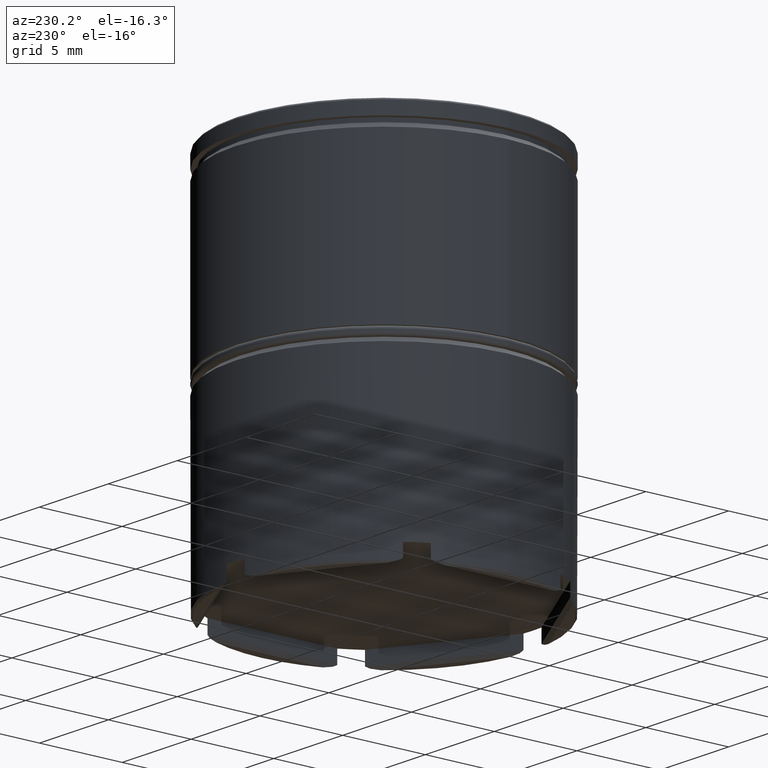
[diagram: clean part render]
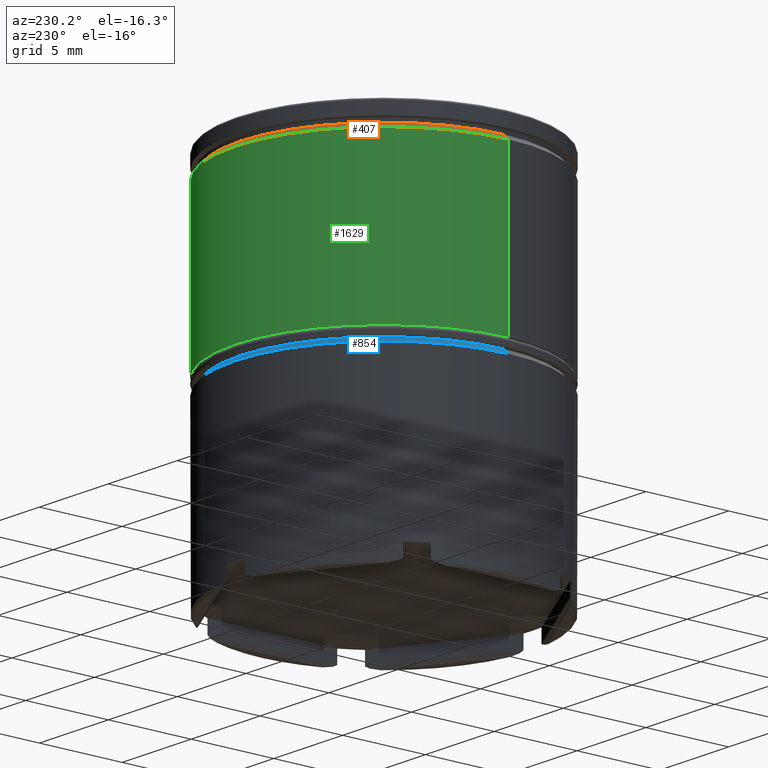
[diagram: same view with three faces highlighted in distinct colors, each labeled with its STEP entity id]
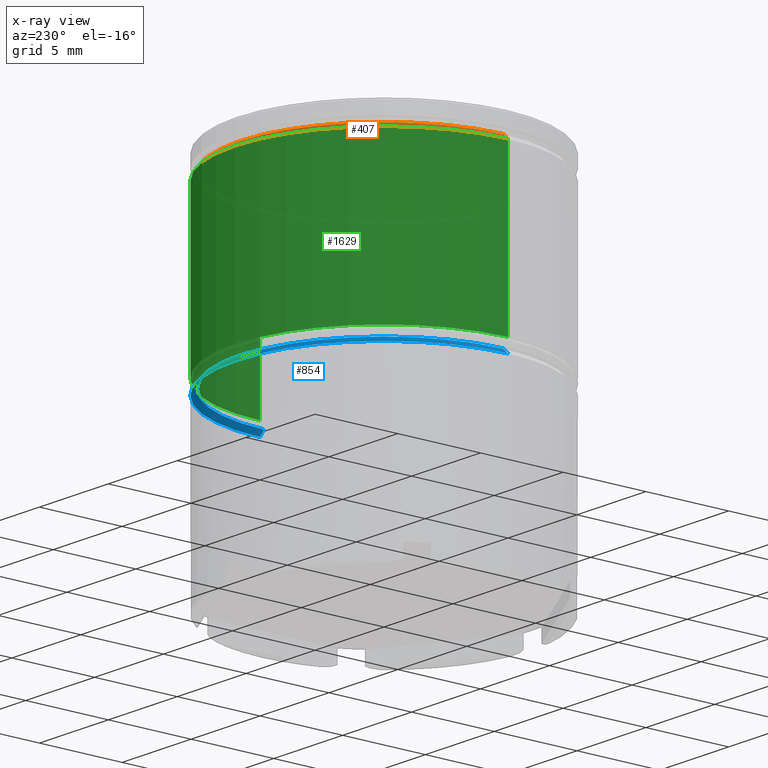
[diagram: x-ray of the same camera — body ghosted, the three highlighted faces saturated]
A machine part, auxiliary view with three faces highlighted in distinct colors.
The next image is the same camera in x-ray (body ghosted, the three faces saturated) — at least one of them is partly hidden behind the body in this view.
Their STEP definitions:

[orange] entity #407 — the highlighted conical surface has half-angle 45 deg.
#29 = EDGE_CURVE ( 'NONE', #541, #590, #1542, .T. ) ;
#136 = CARTESIAN_POINT ( 'NONE',  ( -9.000000000000000000, 1.102182119232617714E-15, -1.424999999999989608 ) ) ;
#150 = DIRECTION ( 'NONE',  ( -0.000000000000000000, -0.000000000000000000, 1.000000000000000000 ) ) ;
#179 = ORIENTED_EDGE ( 'NONE', *, *, #1463, .F. ) ;
#185 = CARTESIAN_POINT ( 'NONE',  ( -8.700000000000009948, 0.000000000000000000, -1.125000000000000222 ) ) ;
#304 = CIRCLE ( 'NONE', #1309, 8.699999999999999289 ) ;
#323 = EDGE_CURVE ( 'NONE', #371, #567, #410, .T. ) ;
#370 = CIRCLE ( 'NONE', #927, 9.000000000000000000 ) ;
#371 = VERTEX_POINT ( 'NONE', #728 ) ;
#383 = CONICAL_SURFACE ( 'NONE', #1072, 8.700000000000009948, 0.7853981633974482790 ) ;
#400 = CARTESIAN_POINT ( 'NONE',  ( 0.000000000000000000, 0.000000000000000000, -1.125000000000000222 ) ) ;
#407 = ADVANCED_FACE ( 'NONE', ( #1534 ), #383, .T. ) ;
#410 = LINE ( 'NONE', #914, #893 ) ;
#418 = ORIENTED_EDGE ( 'NONE', *, *, #620, .F. ) ;
#496 = ORIENTED_EDGE ( 'NONE', *, *, #29, .F. ) ;
#516 = DIRECTION ( 'NONE',  ( 0.7071067811865474617, 8.659560562354932858E-17, -0.7071067811865474617 ) ) ;
#541 = VERTEX_POINT ( 'NONE', #1377 ) ;
#555 = DIRECTION ( 'NONE',  ( -0.7071067811865474617, 0.000000000000000000, -0.7071067811865474617 ) ) ;
#567 = VERTEX_POINT ( 'NONE', #861 ) ;
#590 = VERTEX_POINT ( 'NONE', #136 ) ;
#620 = EDGE_CURVE ( 'NONE', #371, #541, #304, .T. ) ;
#627 = DIRECTION ( 'NONE',  ( 1.000000000000000000, 0.000000000000000000, 0.000000000000000000 ) ) ;
#630 = DIRECTION ( 'NONE',  ( -1.000000000000000000, 0.000000000000000000, 0.000000000000000000 ) ) ;
#728 = CARTESIAN_POINT ( 'NONE',  ( 8.699999999999999289, 0.000000000000000000, -1.125000000000000222 ) ) ;
#747 = DIRECTION ( 'NONE',  ( 0.000000000000000000, 0.000000000000000000, -1.000000000000000000 ) ) ;
#861 = CARTESIAN_POINT ( 'NONE',  ( 9.000000000000000000, 0.000000000000000000, -1.424999999999989608 ) ) ;
#893 = VECTOR ( 'NONE', #516, 1000.000000000000114 ) ;
#910 = DIRECTION ( 'NONE',  ( 0.000000000000000000, 0.000000000000000000, -1.000000000000000000 ) ) ;
#914 = CARTESIAN_POINT ( 'NONE',  ( 8.700000000000009948, 1.065442715258198432E-15, -1.125000000000000222 ) ) ;
#927 = AXIS2_PLACEMENT_3D ( 'NONE', #1380, #747, #627 ) ;
#1072 = AXIS2_PLACEMENT_3D ( 'NONE', #400, #910, #630 ) ;
#1208 = VECTOR ( 'NONE', #555, 1000.000000000000114 ) ;
#1309 = AXIS2_PLACEMENT_3D ( 'NONE', #1544, #150, #1554 ) ;
#1377 = CARTESIAN_POINT ( 'NONE',  ( -8.699999999999999289, 1.065442715258197248E-15, -1.125000000000000222 ) ) ;
#1380 = CARTESIAN_POINT ( 'NONE',  ( 0.000000000000000000, 0.000000000000000000, -1.424999999999989608 ) ) ;
#1463 = EDGE_CURVE ( 'NONE', #590, #567, #370, .T. ) ;
#1518 = EDGE_LOOP ( 'NONE', ( #418, #1584, #179, #496 ) ) ;
#1534 = FACE_OUTER_BOUND ( 'NONE', #1518, .T. ) ;
#1542 = LINE ( 'NONE', #185, #1208 ) ;
#1544 = CARTESIAN_POINT ( 'NONE',  ( 0.000000000000000000, 0.000000000000000000, -1.125000000000000222 ) ) ;
#1554 = DIRECTION ( 'NONE',  ( 1.000000000000000000, 0.000000000000000000, 0.000000000000000000 ) ) ;
#1584 = ORIENTED_EDGE ( 'NONE', *, *, #323, .T. ) ;

[blue] entity #854 — the highlighted conical surface has half-angle 45 deg.
#12 = LINE ( 'NONE', #269, #1132 ) ;
#119 = DIRECTION ( 'NONE',  ( 1.000000000000000000, 0.000000000000000000, 0.000000000000000000 ) ) ;
#128 = CARTESIAN_POINT ( 'NONE',  ( 9.000000000000000000, 0.000000000000000000, -11.80000000000000249 ) ) ;
#167 = EDGE_CURVE ( 'NONE', #385, #825, #381, .T. ) ;
#211 = DIRECTION ( 'NONE',  ( 0.000000000000000000, 0.000000000000000000, -1.000000000000000000 ) ) ;
#249 = EDGE_CURVE ( 'NONE', #335, #459, #12, .T. ) ;
#269 = CARTESIAN_POINT ( 'NONE',  ( 8.700000000000002842, 1.065442715258197643E-15, -11.50000000000000000 ) ) ;
#274 = ORIENTED_EDGE ( 'NONE', *, *, #1611, .F. ) ;
#281 = DIRECTION ( 'NONE',  ( 1.000000000000000000, 0.000000000000000000, 0.000000000000000000 ) ) ;
#314 = CIRCLE ( 'NONE', #542, 9.000000000000000000 ) ;
#335 = VERTEX_POINT ( 'NONE', #1095 ) ;
#356 = DIRECTION ( 'NONE',  ( -0.000000000000000000, -0.000000000000000000, 1.000000000000000000 ) ) ;
#381 = LINE ( 'NONE', #1597, #587 ) ;
#385 = VERTEX_POINT ( 'NONE', #1526 ) ;
#459 = VERTEX_POINT ( 'NONE', #128 ) ;
#522 = DIRECTION ( 'NONE',  ( 0.7071067811865392461, 8.659560562354833018E-17, -0.7071067811865556774 ) ) ;
#542 = AXIS2_PLACEMENT_3D ( 'NONE', #912, #1416, #281 ) ;
#577 = ORIENTED_EDGE ( 'NONE', *, *, #942, .F. ) ;
#587 = VECTOR ( 'NONE', #954, 1000.000000000000114 ) ;
#622 = CARTESIAN_POINT ( 'NONE',  ( 0.000000000000000000, 0.000000000000000000, -11.50000000000000000 ) ) ;
#825 = VERTEX_POINT ( 'NONE', #852 ) ;
#852 = CARTESIAN_POINT ( 'NONE',  ( -9.000000000000000000, 1.102182119232617714E-15, -11.80000000000000249 ) ) ;
#854 = ADVANCED_FACE ( 'NONE', ( #1190 ), #1102, .T. ) ;
#889 = CIRCLE ( 'NONE', #1048, 8.699999999999999289 ) ;
#912 = CARTESIAN_POINT ( 'NONE',  ( 0.000000000000000000, 0.000000000000000000, -11.80000000000000249 ) ) ;
#942 = EDGE_CURVE ( 'NONE', #335, #385, #889, .T. ) ;
#954 = DIRECTION ( 'NONE',  ( -0.7071067811865392461, 0.000000000000000000, -0.7071067811865556774 ) ) ;
#970 = DIRECTION ( 'NONE',  ( -1.000000000000000000, 0.000000000000000000, 0.000000000000000000 ) ) ;
#1048 = AXIS2_PLACEMENT_3D ( 'NONE', #622, #356, #119 ) ;
#1095 = CARTESIAN_POINT ( 'NONE',  ( 8.699999999999999289, 0.000000000000000000, -11.50000000000000000 ) ) ;
#1102 = CONICAL_SURFACE ( 'NONE', #1468, 8.700000000000002842, 0.7853981633974367327 ) ;
#1132 = VECTOR ( 'NONE', #522, 1000.000000000000114 ) ;
#1190 = FACE_OUTER_BOUND ( 'NONE', #1480, .T. ) ;
#1243 = ORIENTED_EDGE ( 'NONE', *, *, #249, .T. ) ;
#1347 = CARTESIAN_POINT ( 'NONE',  ( 0.000000000000000000, 0.000000000000000000, -11.50000000000000000 ) ) ;
#1416 = DIRECTION ( 'NONE',  ( 0.000000000000000000, 0.000000000000000000, -1.000000000000000000 ) ) ;
#1468 = AXIS2_PLACEMENT_3D ( 'NONE', #1347, #211, #970 ) ;
#1480 = EDGE_LOOP ( 'NONE', ( #577, #1243, #274, #1606 ) ) ;
#1526 = CARTESIAN_POINT ( 'NONE',  ( -8.699999999999999289, 1.065442715258197248E-15, -11.50000000000000000 ) ) ;
#1597 = CARTESIAN_POINT ( 'NONE',  ( -8.700000000000002842, 0.000000000000000000, -11.50000000000000000 ) ) ;
#1606 = ORIENTED_EDGE ( 'NONE', *, *, #167, .F. ) ;
#1611 = EDGE_CURVE ( 'NONE', #825, #459, #314, .T. ) ;

[green] entity #1629 — the highlighted cylindrical surface (partial cylindrical patch) has radius 9 mm, axis along (-0, -0, 1).
#24 = VECTOR ( 'NONE', #178, 1000.000000000000000 ) ;
#49 = DIRECTION ( 'NONE',  ( 1.000000000000000000, 0.000000000000000000, 0.000000000000000000 ) ) ;
#55 = DIRECTION ( 'NONE',  ( -0.000000000000000000, -0.000000000000000000, 1.000000000000000000 ) ) ;
#56 = EDGE_CURVE ( 'NONE', #984, #590, #1303, .T. ) ;
#103 = LINE ( 'NONE', #731, #1588 ) ;
#105 = CARTESIAN_POINT ( 'NONE',  ( 9.000000000000000000, 0.000000000000000000, -11.00000000000000000 ) ) ;
#136 = CARTESIAN_POINT ( 'NONE',  ( -9.000000000000000000, 1.102182119232617714E-15, -1.424999999999989608 ) ) ;
#173 = DIRECTION ( 'NONE',  ( -0.000000000000000000, -0.000000000000000000, 1.000000000000000000 ) ) ;
#178 = DIRECTION ( 'NONE',  ( -0.000000000000000000, -0.000000000000000000, 1.000000000000000000 ) ) ;
#206 = EDGE_LOOP ( 'NONE', ( #352, #900, #1497, #576 ) ) ;
#352 = ORIENTED_EDGE ( 'NONE', *, *, #1633, .T. ) ;
#370 = CIRCLE ( 'NONE', #927, 9.000000000000000000 ) ;
#452 = CARTESIAN_POINT ( 'NONE',  ( 0.000000000000000000, 0.000000000000000000, -11.00000000000000000 ) ) ;
#567 = VERTEX_POINT ( 'NONE', #861 ) ;
#576 = ORIENTED_EDGE ( 'NONE', *, *, #1360, .F. ) ;
#590 = VERTEX_POINT ( 'NONE', #136 ) ;
#597 = AXIS2_PLACEMENT_3D ( 'NONE', #1440, #173, #49 ) ;
#627 = DIRECTION ( 'NONE',  ( 1.000000000000000000, 0.000000000000000000, 0.000000000000000000 ) ) ;
#731 = CARTESIAN_POINT ( 'NONE',  ( 9.000000000000000000, 0.000000000000000000, 0.000000000000000000 ) ) ;
#747 = DIRECTION ( 'NONE',  ( 0.000000000000000000, 0.000000000000000000, -1.000000000000000000 ) ) ;
#814 = CYLINDRICAL_SURFACE ( 'NONE', #597, 9.000000000000000000 ) ;
#861 = CARTESIAN_POINT ( 'NONE',  ( 9.000000000000000000, 0.000000000000000000, -1.424999999999989608 ) ) ;
#900 = ORIENTED_EDGE ( 'NONE', *, *, #56, .T. ) ;
#927 = AXIS2_PLACEMENT_3D ( 'NONE', #1380, #747, #627 ) ;
#936 = FACE_OUTER_BOUND ( 'NONE', #206, .T. ) ;
#984 = VERTEX_POINT ( 'NONE', #1121 ) ;
#989 = VERTEX_POINT ( 'NONE', #105 ) ;
#1001 = DIRECTION ( 'NONE',  ( -0.000000000000000000, -0.000000000000000000, 1.000000000000000000 ) ) ;
#1002 = CIRCLE ( 'NONE', #1294, 9.000000000000000000 ) ;
#1121 = CARTESIAN_POINT ( 'NONE',  ( -9.000000000000000000, 1.102182119232617714E-15, -11.00000000000000000 ) ) ;
#1294 = AXIS2_PLACEMENT_3D ( 'NONE', #452, #55, #1433 ) ;
#1303 = LINE ( 'NONE', #1311, #24 ) ;
#1311 = CARTESIAN_POINT ( 'NONE',  ( -9.000000000000000000, 1.102182119232617714E-15, 0.000000000000000000 ) ) ;
#1360 = EDGE_CURVE ( 'NONE', #989, #567, #103, .T. ) ;
#1380 = CARTESIAN_POINT ( 'NONE',  ( 0.000000000000000000, 0.000000000000000000, -1.424999999999989608 ) ) ;
#1433 = DIRECTION ( 'NONE',  ( 1.000000000000000000, 0.000000000000000000, 0.000000000000000000 ) ) ;
#1440 = CARTESIAN_POINT ( 'NONE',  ( 0.000000000000000000, 0.000000000000000000, 0.000000000000000000 ) ) ;
#1463 = EDGE_CURVE ( 'NONE', #590, #567, #370, .T. ) ;
#1497 = ORIENTED_EDGE ( 'NONE', *, *, #1463, .T. ) ;
#1588 = VECTOR ( 'NONE', #1001, 1000.000000000000000 ) ;
#1629 = ADVANCED_FACE ( 'NONE', ( #936 ), #814, .T. ) ;
#1633 = EDGE_CURVE ( 'NONE', #989, #984, #1002, .T. ) ;